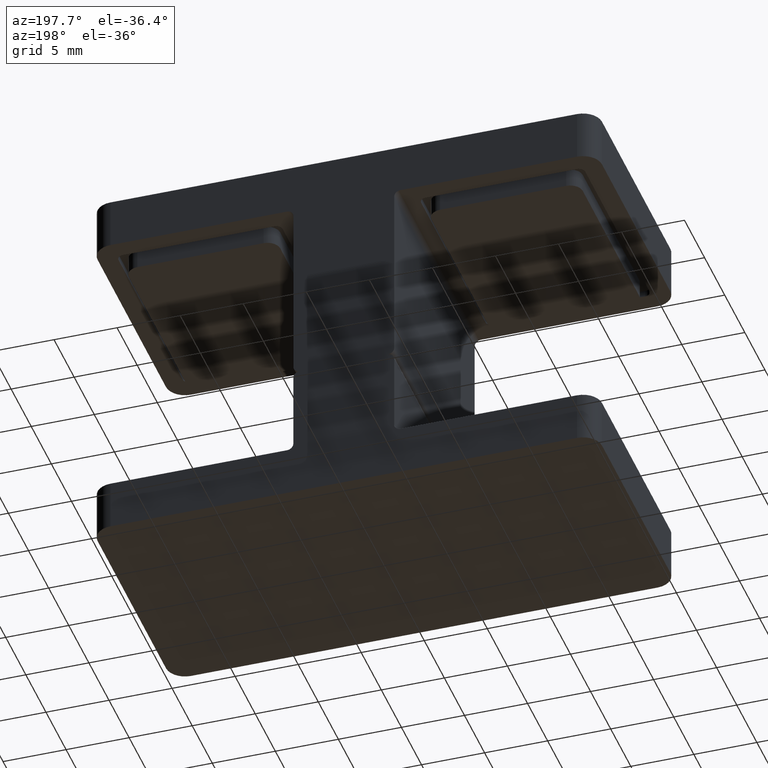
[diagram: clean part render]
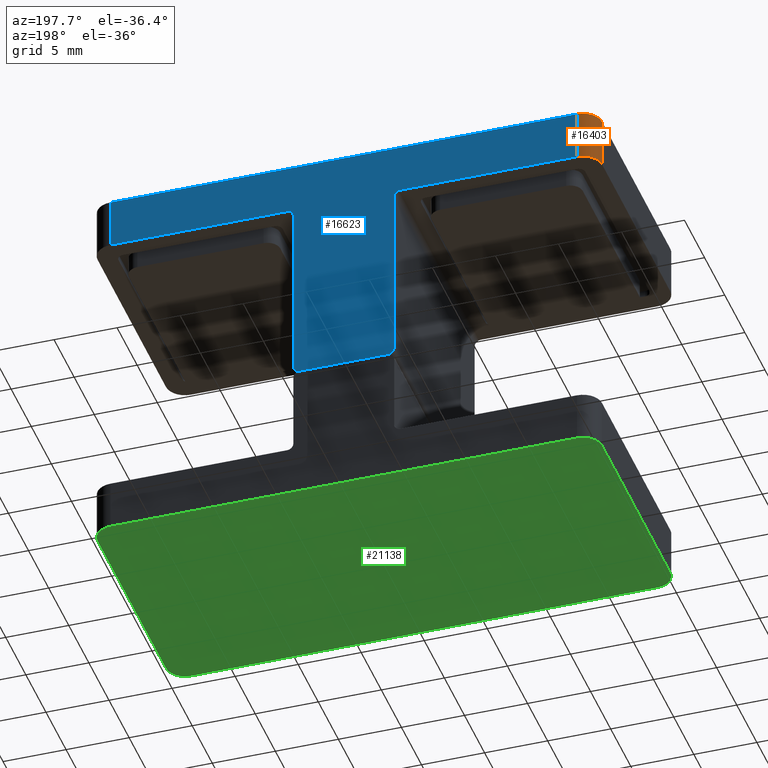
[diagram: same view with three faces highlighted in distinct colors, each labeled with its STEP entity id]
A machine part, auxiliary view with three faces highlighted in distinct colors.
Their STEP definitions:

[orange] entity #16403 — the highlighted cylindrical surface (edge-blend (fillet) strip) has radius 1.5 mm, axis along (0, 0, 1).
#497 = VERTEX_POINT ( 'NONE', #22472 ) ;
#1095 = DIRECTION ( 'NONE',  ( 0.000000000000000000, -0.000000000000000000, -1.000000000000000000 ) ) ;
#1921 = ORIENTED_EDGE ( 'NONE', *, *, #11362, .F. ) ;
#2192 = FACE_OUTER_BOUND ( 'NONE', #11839, .T. ) ;
#3477 = DIRECTION ( 'NONE',  ( 1.000000000000000000, 0.000000000000000000, 0.000000000000000000 ) ) ;
#3696 = VECTOR ( 'NONE', #23278, 1000.000000000000000 ) ;
#3827 = CARTESIAN_POINT ( 'NONE',  ( -18.49999999999999289, 9.999999999999998224, -4.000000000000000000 ) ) ;
#4450 = DIRECTION ( 'NONE',  ( 0.000000000000000000, -0.000000000000000000, 1.000000000000000000 ) ) ;
#7271 = EDGE_CURVE ( 'NONE', #29125, #497, #30393, .T. ) ;
#7775 = VECTOR ( 'NONE', #4450, 1000.000000000000000 ) ;
#7867 = CARTESIAN_POINT ( 'NONE',  ( -19.99999999999999289, 8.499999999999998224, -4.000000000000000000 ) ) ;
#8202 = EDGE_CURVE ( 'NONE', #23782, #18734, #12289, .T. ) ;
#8800 = ORIENTED_EDGE ( 'NONE', *, *, #8202, .F. ) ;
#9102 = AXIS2_PLACEMENT_3D ( 'NONE', #19286, #1095, #3477 ) ;
#11362 = EDGE_CURVE ( 'NONE', #18734, #29125, #28988, .T. ) ;
#11436 = CARTESIAN_POINT ( 'NONE',  ( -18.49999999999999289, 9.999999999999998224, 0.000000000000000000 ) ) ;
#11839 = EDGE_LOOP ( 'NONE', ( #17369, #32937, #1921, #8800 ) ) ;
#12289 = LINE ( 'NONE', #14823, #7775 ) ;
#14238 = DIRECTION ( 'NONE',  ( 1.000000000000000000, 0.000000000000000000, 0.000000000000000000 ) ) ;
#14823 = CARTESIAN_POINT ( 'NONE',  ( -18.49999999999999289, 9.999999999999998224, -4.000000000000000000 ) ) ;
#16403 = ADVANCED_FACE ( 'NONE', ( #2192 ), #33404, .T. ) ;
#17369 = ORIENTED_EDGE ( 'NONE', *, *, #27789, .F. ) ;
#18734 = VERTEX_POINT ( 'NONE', #11436 ) ;
#19221 = AXIS2_PLACEMENT_3D ( 'NONE', #23114, #25754, #31160 ) ;
#19286 = CARTESIAN_POINT ( 'NONE',  ( -18.49999999999999289, 8.499999999999998224, -4.000000000000000000 ) ) ;
#22325 = DIRECTION ( 'NONE',  ( 0.000000000000000000, 0.000000000000000000, 1.000000000000000000 ) ) ;
#22472 = CARTESIAN_POINT ( 'NONE',  ( -19.99999999999999289, 8.499999999999998224, -4.000000000000000000 ) ) ;
#23114 = CARTESIAN_POINT ( 'NONE',  ( -18.49999999999999289, 8.499999999999998224, 0.000000000000000000 ) ) ;
#23278 = DIRECTION ( 'NONE',  ( -0.000000000000000000, -0.000000000000000000, -1.000000000000000000 ) ) ;
#23782 = VERTEX_POINT ( 'NONE', #3827 ) ;
#25754 = DIRECTION ( 'NONE',  ( -0.000000000000000000, 0.000000000000000000, 1.000000000000000000 ) ) ;
#26806 = CIRCLE ( 'NONE', #9102, 1.500000000000001332 ) ;
#27789 = EDGE_CURVE ( 'NONE', #497, #23782, #26806, .T. ) ;
#28521 = AXIS2_PLACEMENT_3D ( 'NONE', #30045, #22325, #14238 ) ;
#28988 = CIRCLE ( 'NONE', #19221, 1.500000000000001332 ) ;
#29125 = VERTEX_POINT ( 'NONE', #33541 ) ;
#30045 = CARTESIAN_POINT ( 'NONE',  ( -18.49999999999999289, 8.499999999999998224, -4.000000000000000000 ) ) ;
#30393 = LINE ( 'NONE', #7867, #3696 ) ;
#31160 = DIRECTION ( 'NONE',  ( 1.000000000000000000, 0.000000000000000000, 0.000000000000000000 ) ) ;
#32937 = ORIENTED_EDGE ( 'NONE', *, *, #7271, .F. ) ;
#33404 = CYLINDRICAL_SURFACE ( 'NONE', #28521, 1.500000000000001332 ) ;
#33541 = CARTESIAN_POINT ( 'NONE',  ( -19.99999999999999289, 8.499999999999998224, 0.000000000000000000 ) ) ;

[blue] entity #16623 — the highlighted planar face has unit normal (0, 1, 0).
#362 = EDGE_CURVE ( 'NONE', #25765, #28282, #24470, .T. ) ;
#820 = AXIS2_PLACEMENT_3D ( 'NONE', #2648, #21204, #18443 ) ;
#991 = DIRECTION ( 'NONE',  ( 0.000000000000000000, -0.000000000000000000, 1.000000000000000000 ) ) ;
#1121 = ORIENTED_EDGE ( 'NONE', *, *, #12870, .T. ) ;
#1584 = CARTESIAN_POINT ( 'NONE',  ( -19.99999999999999289, 9.999999999999998224, 0.000000000000000000 ) ) ;
#1590 = VECTOR ( 'NONE', #10718, 1000.000000000000000 ) ;
#1681 = EDGE_CURVE ( 'NONE', #21762, #10759, #33050, .T. ) ;
#1914 = LINE ( 'NONE', #24971, #8849 ) ;
#1979 = AXIS2_PLACEMENT_3D ( 'NONE', #32070, #24258, #991 ) ;
#1989 = AXIS2_PLACEMENT_3D ( 'NONE', #6191, #27199, #32259 ) ;
#2089 = CARTESIAN_POINT ( 'NONE',  ( 18.50000000000000711, 9.999999999999998224, 0.000000000000000000 ) ) ;
#2622 = VERTEX_POINT ( 'NONE', #13712 ) ;
#2648 = CARTESIAN_POINT ( 'NONE',  ( 4.500000000000000000, 9.999999999999998224, -4.500000000000000888 ) ) ;
#2903 = DIRECTION ( 'NONE',  ( 0.000000000000000000, 0.000000000000000000, 1.000000000000000000 ) ) ;
#3133 = ORIENTED_EDGE ( 'NONE', *, *, #4913, .T. ) ;
#3250 = VECTOR ( 'NONE', #24386, 1000.000000000000000 ) ;
#3733 = CARTESIAN_POINT ( 'NONE',  ( -4.000000000000000000, 9.999999999999998224, -18.70000000000000284 ) ) ;
#3827 = CARTESIAN_POINT ( 'NONE',  ( -18.49999999999999289, 9.999999999999998224, -4.000000000000000000 ) ) ;
#4260 = CARTESIAN_POINT ( 'NONE',  ( -4.000000000000000000, 9.999999999999998224, -4.500000000000003553 ) ) ;
#4273 = ORIENTED_EDGE ( 'NONE', *, *, #19173, .T. ) ;
#4450 = DIRECTION ( 'NONE',  ( 0.000000000000000000, -0.000000000000000000, 1.000000000000000000 ) ) ;
#4913 = EDGE_CURVE ( 'NONE', #2622, #21100, #7868, .T. ) ;
#5809 = EDGE_CURVE ( 'NONE', #27011, #25891, #11528, .T. ) ;
#6191 = CARTESIAN_POINT ( 'NONE',  ( 3.500000000000000000, 9.999999999999998224, -18.70000000000000284 ) ) ;
#6480 = LINE ( 'NONE', #8097, #1590 ) ;
#6630 = CARTESIAN_POINT ( 'NONE',  ( 3.500000000000000000, 9.999999999999998224, -19.20000000000000284 ) ) ;
#7254 = ORIENTED_EDGE ( 'NONE', *, *, #8202, .T. ) ;
#7775 = VECTOR ( 'NONE', #4450, 1000.000000000000000 ) ;
#7868 = CIRCLE ( 'NONE', #10726, 0.5000000000000004441 ) ;
#8097 = CARTESIAN_POINT ( 'NONE',  ( 4.000000000000000000, 9.999999999999998224, -19.20000000000000284 ) ) ;
#8202 = EDGE_CURVE ( 'NONE', #23782, #18734, #12289, .T. ) ;
#8849 = VECTOR ( 'NONE', #30263, 1000.000000000000000 ) ;
#9239 = LINE ( 'NONE', #1584, #19513 ) ;
#9378 = EDGE_CURVE ( 'NONE', #14552, #21762, #19249, .T. ) ;
#9538 = EDGE_CURVE ( 'NONE', #25765, #31186, #24174, .T. ) ;
#9715 = CARTESIAN_POINT ( 'NONE',  ( -4.500000000000000888, 9.999999999999998224, -4.000000000000000000 ) ) ;
#9936 = CARTESIAN_POINT ( 'NONE',  ( 18.50000000000000711, 9.999999999999998224, -4.000000000000000000 ) ) ;
#9986 = EDGE_CURVE ( 'NONE', #2622, #28282, #6480, .T. ) ;
#10651 = DIRECTION ( 'NONE',  ( 0.000000000000000000, 1.000000000000000000, 0.000000000000000000 ) ) ;
#10718 = DIRECTION ( 'NONE',  ( 1.000000000000000000, -0.000000000000000000, -0.000000000000000000 ) ) ;
#10726 = AXIS2_PLACEMENT_3D ( 'NONE', #26294, #10651, #2903 ) ;
#10759 = VERTEX_POINT ( 'NONE', #27763 ) ;
#11436 = CARTESIAN_POINT ( 'NONE',  ( -18.49999999999999289, 9.999999999999998224, 0.000000000000000000 ) ) ;
#11446 = ORIENTED_EDGE ( 'NONE', *, *, #1681, .T. ) ;
#11528 = CIRCLE ( 'NONE', #20016, 0.5000000000000004441 ) ;
#11648 = VECTOR ( 'NONE', #16877, 1000.000000000000000 ) ;
#11989 = CARTESIAN_POINT ( 'NONE',  ( 4.000000000000000000, 9.999999999999998224, -18.70000000000000284 ) ) ;
#12239 = FACE_OUTER_BOUND ( 'NONE', #18041, .T. ) ;
#12289 = LINE ( 'NONE', #14823, #7775 ) ;
#12638 = ORIENTED_EDGE ( 'NONE', *, *, #24684, .T. ) ;
#12870 = EDGE_CURVE ( 'NONE', #10759, #31186, #17427, .T. ) ;
#13712 = CARTESIAN_POINT ( 'NONE',  ( -3.499999999999999556, 9.999999999999998224, -19.20000000000000284 ) ) ;
#13801 = VECTOR ( 'NONE', #27053, 1000.000000000000000 ) ;
#14117 = CARTESIAN_POINT ( 'NONE',  ( 18.50000000000000711, 9.999999999999998224, -4.000000000000000000 ) ) ;
#14552 = VERTEX_POINT ( 'NONE', #2089 ) ;
#14823 = CARTESIAN_POINT ( 'NONE',  ( -18.49999999999999289, 9.999999999999998224, -4.000000000000000000 ) ) ;
#16107 = ORIENTED_EDGE ( 'NONE', *, *, #362, .T. ) ;
#16623 = ADVANCED_FACE ( 'NONE', ( #12239 ), #29415, .T. ) ;
#16877 = DIRECTION ( 'NONE',  ( -1.000000000000000000, -0.000000000000000000, -0.000000000000000000 ) ) ;
#17427 = CIRCLE ( 'NONE', #820, 0.5000000000000004441 ) ;
#17877 = EDGE_CURVE ( 'NONE', #14552, #18734, #9239, .T. ) ;
#18041 = EDGE_LOOP ( 'NONE', ( #25357, #24419, #11446, #1121, #33859, #16107, #33721, #3133, #4273, #33244, #12638, #7254 ) ) ;
#18443 = DIRECTION ( 'NONE',  ( 0.000000000000000000, 0.000000000000000000, 1.000000000000000000 ) ) ;
#18734 = VERTEX_POINT ( 'NONE', #11436 ) ;
#18818 = VECTOR ( 'NONE', #20603, 1000.000000000000000 ) ;
#19173 = EDGE_CURVE ( 'NONE', #21100, #27011, #24733, .T. ) ;
#19211 = CARTESIAN_POINT ( 'NONE',  ( -19.99999999999999289, 9.999999999999998224, -4.000000000000000000 ) ) ;
#19249 = LINE ( 'NONE', #9936, #18818 ) ;
#19513 = VECTOR ( 'NONE', #30132, 1000.000000000000000 ) ;
#20016 = AXIS2_PLACEMENT_3D ( 'NONE', #33179, #30526, #32717 ) ;
#20603 = DIRECTION ( 'NONE',  ( -0.000000000000000000, 0.000000000000000000, -1.000000000000000000 ) ) ;
#21100 = VERTEX_POINT ( 'NONE', #3733 ) ;
#21204 = DIRECTION ( 'NONE',  ( -0.000000000000000000, -1.000000000000000000, -0.000000000000000000 ) ) ;
#21607 = CARTESIAN_POINT ( 'NONE',  ( 4.000000000000000000, 9.999999999999998224, -19.20000000000000284 ) ) ;
#21762 = VERTEX_POINT ( 'NONE', #14117 ) ;
#22872 = CARTESIAN_POINT ( 'NONE',  ( 4.000000000000000000, 9.999999999999998224, -4.500000000000003553 ) ) ;
#23782 = VERTEX_POINT ( 'NONE', #3827 ) ;
#24174 = LINE ( 'NONE', #21607, #3250 ) ;
#24258 = DIRECTION ( 'NONE',  ( 0.000000000000000000, 1.000000000000000000, 0.000000000000000000 ) ) ;
#24386 = DIRECTION ( 'NONE',  ( -0.000000000000000000, -0.000000000000000000, 1.000000000000000000 ) ) ;
#24419 = ORIENTED_EDGE ( 'NONE', *, *, #9378, .T. ) ;
#24470 = CIRCLE ( 'NONE', #1989, 0.5000000000000004441 ) ;
#24684 = EDGE_CURVE ( 'NONE', #25891, #23782, #1914, .T. ) ;
#24733 = LINE ( 'NONE', #27285, #13801 ) ;
#24971 = CARTESIAN_POINT ( 'NONE',  ( -19.99999999999999289, 9.999999999999998224, -4.000000000000000000 ) ) ;
#25357 = ORIENTED_EDGE ( 'NONE', *, *, #17877, .F. ) ;
#25765 = VERTEX_POINT ( 'NONE', #11989 ) ;
#25891 = VERTEX_POINT ( 'NONE', #9715 ) ;
#26294 = CARTESIAN_POINT ( 'NONE',  ( -3.500000000000000000, 9.999999999999998224, -18.70000000000000284 ) ) ;
#27011 = VERTEX_POINT ( 'NONE', #4260 ) ;
#27053 = DIRECTION ( 'NONE',  ( -0.000000000000000000, -0.000000000000000000, 1.000000000000000000 ) ) ;
#27199 = DIRECTION ( 'NONE',  ( 0.000000000000000000, 1.000000000000000000, 0.000000000000000000 ) ) ;
#27285 = CARTESIAN_POINT ( 'NONE',  ( -4.000000000000000000, 9.999999999999998224, -19.20000000000000284 ) ) ;
#27763 = CARTESIAN_POINT ( 'NONE',  ( 4.500000000000000888, 9.999999999999998224, -4.000000000000000000 ) ) ;
#28282 = VERTEX_POINT ( 'NONE', #6630 ) ;
#29415 = PLANE ( 'NONE',  #1979 ) ;
#30132 = DIRECTION ( 'NONE',  ( -1.000000000000000000, -0.000000000000000000, -0.000000000000000000 ) ) ;
#30263 = DIRECTION ( 'NONE',  ( -1.000000000000000000, -0.000000000000000000, -0.000000000000000000 ) ) ;
#30526 = DIRECTION ( 'NONE',  ( -0.000000000000000000, -1.000000000000000000, -0.000000000000000000 ) ) ;
#31186 = VERTEX_POINT ( 'NONE', #22872 ) ;
#32070 = CARTESIAN_POINT ( 'NONE',  ( -19.99999999999999289, 9.999999999999998224, -4.000000000000000000 ) ) ;
#32259 = DIRECTION ( 'NONE',  ( 0.000000000000000000, 0.000000000000000000, 1.000000000000000000 ) ) ;
#32717 = DIRECTION ( 'NONE',  ( 5.204170427930416550E-15, 0.000000000000000000, 1.000000000000000000 ) ) ;
#33050 = LINE ( 'NONE', #19211, #11648 ) ;
#33179 = CARTESIAN_POINT ( 'NONE',  ( -4.500000000000000000, 9.999999999999998224, -4.500000000000000888 ) ) ;
#33244 = ORIENTED_EDGE ( 'NONE', *, *, #5809, .T. ) ;
#33721 = ORIENTED_EDGE ( 'NONE', *, *, #9986, .F. ) ;
#33859 = ORIENTED_EDGE ( 'NONE', *, *, #9538, .F. ) ;

[green] entity #21138 — the highlighted planar face has unit normal (0, 0, 1).
#94 = DIRECTION ( 'NONE',  ( 1.000000000000000000, 0.000000000000000000, 0.000000000000000000 ) ) ;
#354 = EDGE_CURVE ( 'NONE', #28735, #1376, #19937, .T. ) ;
#850 = CARTESIAN_POINT ( 'NONE',  ( 20.00000000000001066, -8.500000000000003553, 0.000000000000000000 ) ) ;
#860 = CIRCLE ( 'NONE', #33384, 1.500000000000001332 ) ;
#966 = AXIS2_PLACEMENT_3D ( 'NONE', #27848, #12090, #20247 ) ;
#1376 = VERTEX_POINT ( 'NONE', #17855 ) ;
#1643 = ORIENTED_EDGE ( 'NONE', *, *, #11980, .F. ) ;
#1906 = EDGE_LOOP ( 'NONE', ( #10184, #8837, #1643, #2365, #9290, #33265, #33607, #13383 ) ) ;
#2365 = ORIENTED_EDGE ( 'NONE', *, *, #22947, .T. ) ;
#2884 = DIRECTION ( 'NONE',  ( 0.000000000000000000, -0.000000000000000000, -1.000000000000000000 ) ) ;
#3280 = FACE_OUTER_BOUND ( 'NONE', #1906, .T. ) ;
#3985 = CARTESIAN_POINT ( 'NONE',  ( -19.99999999999998934, -10.00000000000000355, 0.000000000000000000 ) ) ;
#4044 = CARTESIAN_POINT ( 'NONE',  ( -19.99999999999998934, -8.500000000000003553, 0.000000000000000000 ) ) ;
#4454 = VERTEX_POINT ( 'NONE', #4789 ) ;
#4789 = CARTESIAN_POINT ( 'NONE',  ( -18.49999999999999289, 9.999999999999998224, 0.000000000000000000 ) ) ;
#5291 = AXIS2_PLACEMENT_3D ( 'NONE', #27691, #16984, #30340 ) ;
#5804 = AXIS2_PLACEMENT_3D ( 'NONE', #7747, #31534, #94 ) ;
#6839 = CIRCLE ( 'NONE', #5804, 1.500000000000001332 ) ;
#7747 = CARTESIAN_POINT ( 'NONE',  ( -18.49999999999998934, -8.500000000000003553, 0.000000000000000000 ) ) ;
#7958 = DIRECTION ( 'NONE',  ( -1.734723475976806848E-16, 1.000000000000000000, -0.000000000000000000 ) ) ;
#8331 = VERTEX_POINT ( 'NONE', #33601 ) ;
#8336 = LINE ( 'NONE', #16057, #26005 ) ;
#8529 = VERTEX_POINT ( 'NONE', #14426 ) ;
#8837 = ORIENTED_EDGE ( 'NONE', *, *, #10957, .T. ) ;
#9290 = ORIENTED_EDGE ( 'NONE', *, *, #26224, .F. ) ;
#9336 = CARTESIAN_POINT ( 'NONE',  ( -19.99999999999999289, 8.499999999999998224, 0.000000000000000000 ) ) ;
#10184 = ORIENTED_EDGE ( 'NONE', *, *, #22916, .F. ) ;
#10522 = CIRCLE ( 'NONE', #966, 1.500000000000001332 ) ;
#10957 = EDGE_CURVE ( 'NONE', #8529, #20154, #6839, .T. ) ;
#11358 = LINE ( 'NONE', #3985, #12986 ) ;
#11657 = CARTESIAN_POINT ( 'NONE',  ( 18.50000000000000711, 8.499999999999998224, 0.000000000000000000 ) ) ;
#11680 = LINE ( 'NONE', #13311, #25289 ) ;
#11980 = EDGE_CURVE ( 'NONE', #29531, #20154, #19124, .T. ) ;
#12090 = DIRECTION ( 'NONE',  ( 0.000000000000000000, -0.000000000000000000, -1.000000000000000000 ) ) ;
#12133 = VECTOR ( 'NONE', #31285, 1000.000000000000000 ) ;
#12986 = VECTOR ( 'NONE', #24854, 1000.000000000000000 ) ;
#13311 = CARTESIAN_POINT ( 'NONE',  ( 20.00000000000000711, 9.999999999999998224, 0.000000000000000000 ) ) ;
#13383 = ORIENTED_EDGE ( 'NONE', *, *, #14205, .T. ) ;
#14205 = EDGE_CURVE ( 'NONE', #33993, #8331, #860, .T. ) ;
#14267 = DIRECTION ( 'NONE',  ( 1.000000000000000000, 0.000000000000000000, 0.000000000000000000 ) ) ;
#14426 = CARTESIAN_POINT ( 'NONE',  ( -18.49999999999998934, -10.00000000000000355, 0.000000000000000000 ) ) ;
#15939 = DIRECTION ( 'NONE',  ( -1.000000000000000000, -0.000000000000000000, -0.000000000000000000 ) ) ;
#16057 = CARTESIAN_POINT ( 'NONE',  ( -19.99999999999999289, 9.999999999999998224, 0.000000000000000000 ) ) ;
#16984 = DIRECTION ( 'NONE',  ( -0.000000000000000000, 0.000000000000000000, 1.000000000000000000 ) ) ;
#17708 = EDGE_CURVE ( 'NONE', #33993, #1376, #11680, .T. ) ;
#17855 = CARTESIAN_POINT ( 'NONE',  ( 20.00000000000000711, 8.499999999999998224, 0.000000000000000000 ) ) ;
#18143 = CARTESIAN_POINT ( 'NONE',  ( 18.50000000000000711, 9.999999999999998224, 0.000000000000000000 ) ) ;
#18343 = CARTESIAN_POINT ( 'NONE',  ( 18.50000000000001066, -8.500000000000003553, 0.000000000000000000 ) ) ;
#19124 = LINE ( 'NONE', #25876, #12133 ) ;
#19258 = DIRECTION ( 'NONE',  ( 0.000000000000000000, -0.000000000000000000, -1.000000000000000000 ) ) ;
#19937 = CIRCLE ( 'NONE', #33829, 1.500000000000001332 ) ;
#20154 = VERTEX_POINT ( 'NONE', #4044 ) ;
#20247 = DIRECTION ( 'NONE',  ( 1.000000000000000000, 0.000000000000000000, 0.000000000000000000 ) ) ;
#21138 = ADVANCED_FACE ( 'NONE', ( #3280 ), #25054, .F. ) ;
#22916 = EDGE_CURVE ( 'NONE', #8529, #8331, #11358, .T. ) ;
#22947 = EDGE_CURVE ( 'NONE', #29531, #4454, #10522, .T. ) ;
#24854 = DIRECTION ( 'NONE',  ( 1.000000000000000000, 0.000000000000000000, 0.000000000000000000 ) ) ;
#25054 = PLANE ( 'NONE',  #5291 ) ;
#25289 = VECTOR ( 'NONE', #7958, 1000.000000000000000 ) ;
#25876 = CARTESIAN_POINT ( 'NONE',  ( -19.99999999999999289, 9.999999999999998224, 0.000000000000000000 ) ) ;
#26005 = VECTOR ( 'NONE', #15939, 1000.000000000000000 ) ;
#26224 = EDGE_CURVE ( 'NONE', #28735, #4454, #8336, .T. ) ;
#27691 = CARTESIAN_POINT ( 'NONE',  ( 0.000000000000000000, 0.000000000000000000, 0.000000000000000000 ) ) ;
#27848 = CARTESIAN_POINT ( 'NONE',  ( -18.49999999999999289, 8.499999999999998224, 0.000000000000000000 ) ) ;
#28735 = VERTEX_POINT ( 'NONE', #18143 ) ;
#29257 = DIRECTION ( 'NONE',  ( 1.000000000000000000, 0.000000000000000000, 0.000000000000000000 ) ) ;
#29531 = VERTEX_POINT ( 'NONE', #9336 ) ;
#30340 = DIRECTION ( 'NONE',  ( 1.000000000000000000, 0.000000000000000000, 0.000000000000000000 ) ) ;
#31285 = DIRECTION ( 'NONE',  ( 1.734723475976806848E-16, -1.000000000000000000, 0.000000000000000000 ) ) ;
#31534 = DIRECTION ( 'NONE',  ( 0.000000000000000000, -0.000000000000000000, -1.000000000000000000 ) ) ;
#33265 = ORIENTED_EDGE ( 'NONE', *, *, #354, .T. ) ;
#33384 = AXIS2_PLACEMENT_3D ( 'NONE', #18343, #2884, #29257 ) ;
#33601 = CARTESIAN_POINT ( 'NONE',  ( 18.50000000000001066, -10.00000000000000355, 0.000000000000000000 ) ) ;
#33607 = ORIENTED_EDGE ( 'NONE', *, *, #17708, .F. ) ;
#33829 = AXIS2_PLACEMENT_3D ( 'NONE', #11657, #19258, #14267 ) ;
#33993 = VERTEX_POINT ( 'NONE', #850 ) ;